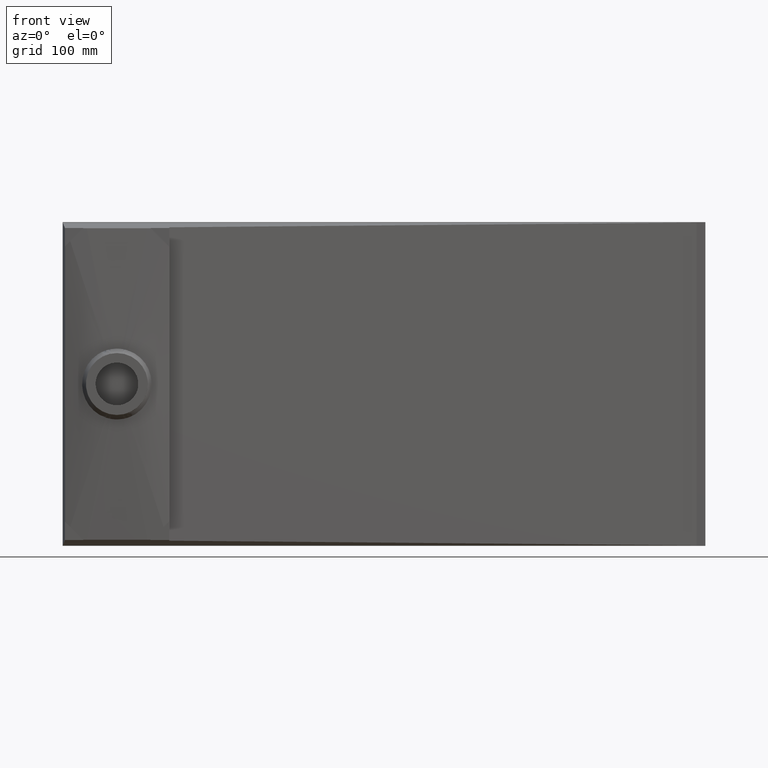
[diagram: clean part render]
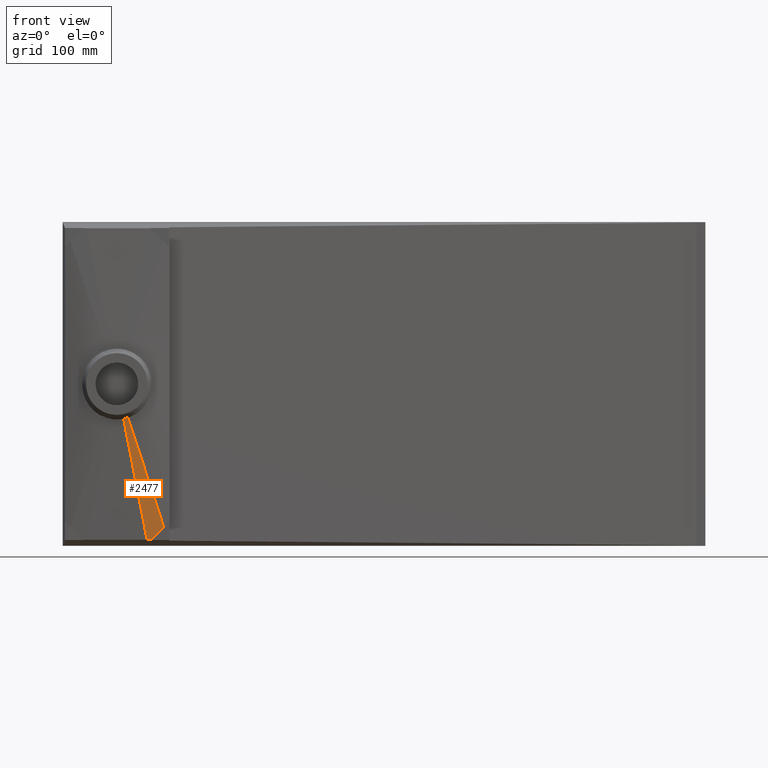
[diagram: same view with one face highlighted and labeled with its STEP entity id]
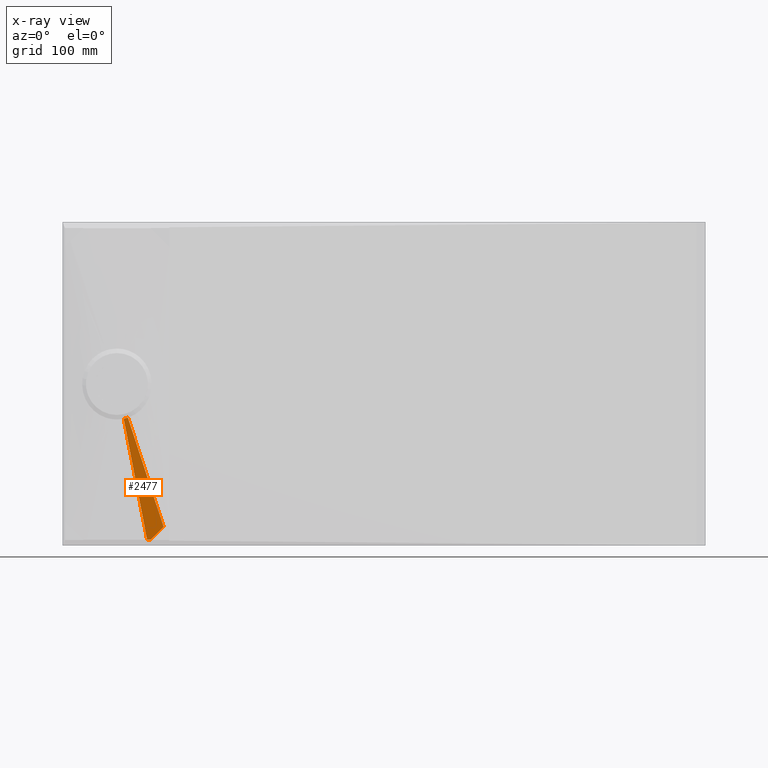
[diagram: x-ray of the same camera — body ghosted, the highlighted face saturated]
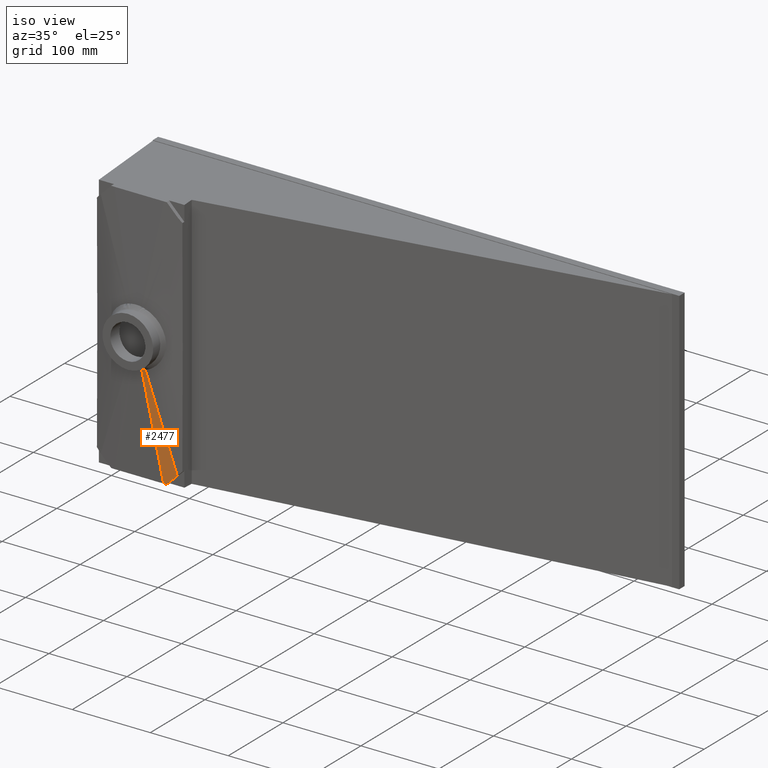
[diagram: same view with one face highlighted and labeled with its STEP entity id]
A machine part, front view. The second image highlights one B-rep face of the part: STEP entity #2477.
The next image is the same camera in x-ray: the body ghosted, the highlighted face saturated — about 0% of this face is hidden behind the body in this view.
A second angle (iso view) of the same face is appended — the face is thin or edge-on in the first view.
In plain terms, the highlighted face is a freeform B-spline surface patch.
Its self-contained STEP definition (entity closure, byte-faithful):
#228 = CARTESIAN_POINT ( 'NONE',  ( 58.54614351858099000, -121.4174629721745000, -195.3431125193549500 ) ) ;
#427 = CARTESIAN_POINT ( 'NONE',  ( 59.53592108445660400, -121.0791283145821500, -204.4689717417503500 ) ) ;
#461 = CARTESIAN_POINT ( 'NONE',  ( 60.96003864894466800, -120.8722246171057700, -209.5553574951167100 ) ) ;
#506 = CARTESIAN_POINT ( 'NONE',  ( 59.25226093279911800, -120.4589704665327600, -223.2772125272419700 ) ) ;
#515 = EDGE_CURVE ( 'NONE', #6365, #8021, #6114, .T. ) ;
#522 = CARTESIAN_POINT ( 'NONE',  ( 62.38415621343273900, -120.6653209196293900, -214.6417432484830400 ) ) ;
#534 = CARTESIAN_POINT ( 'NONE',  ( 60.31089653610995100, -120.2520854132055600, -228.7859897828867900 ) ) ;
#547 = CARTESIAN_POINT ( 'NONE',  ( 63.80493413047494800, -120.4584506155571100, -219.7290578445369000 ) ) ;
#734 = VERTEX_POINT ( 'NONE', #3365 ) ;
#742 = CARTESIAN_POINT ( 'NONE',  ( 71.07462057176361700, -119.0108134788677700, -257.7898609708167300 ) ) ;
#744 = CARTESIAN_POINT ( 'NONE',  ( 58.71628739981817800, -120.6658299117299000, -217.3848253837953200 ) ) ;
#795 = CARTESIAN_POINT ( 'NONE',  ( 76.19523908806746700, -118.1836063095783500, -278.7727904447991700 ) ) ;
#848 = ORIENTED_EDGE ( 'NONE', *, *, #1206, .T. ) ;
#869 = CARTESIAN_POINT ( 'NONE',  ( 54.95389608779177600, -121.4935261185523500, -195.2174705600192500 ) ) ;
#886 = ORIENTED_EDGE ( 'NONE', *, *, #4728, .F. ) ;
#920 = CARTESIAN_POINT ( 'NONE',  ( 55.61845883602679700, -121.4478170917596900, -196.2085659405372300 ) ) ;
#953 = CARTESIAN_POINT ( 'NONE',  ( 71.93181494359970400, -118.1837307090303300, -282.8596823458224200 ) ) ;
#1045 = CARTESIAN_POINT ( 'NONE',  ( 65.22430593101307700, -120.2516012450700900, -224.8167638406261500 ) ) ;
#1067 = EDGE_LOOP ( 'NONE', ( #886, #7523, #5464, #3862, #7598, #848 ) ) ;
#1077 = CARTESIAN_POINT ( 'NONE',  ( 68.06304953208933700, -119.8379025040960400, -234.9921758328046900 ) ) ;
#1109 = CARTESIAN_POINT ( 'NONE',  ( 70.89620548404099100, -119.4242837512126800, -245.1691430267334500 ) ) ;
#1118 = CARTESIAN_POINT ( 'NONE',  ( 62.42816774273161000, -119.8383153065511800, -239.8035442941763600 ) ) ;
#1164 = CARTESIAN_POINT ( 'NONE',  ( 73.72787157557320400, -119.0106955524916800, -255.3465253237477600 ) ) ;
#1206 = EDGE_CURVE ( 'NONE', #8021, #3623, #6637, .T. ) ;
#1223 = CARTESIAN_POINT ( 'NONE',  ( 57.11279345543836400, -121.4318332477066300, -195.8158494930027300 ) ) ;
#1225 = CARTESIAN_POINT ( 'NONE',  ( 56.16662813843875300, -121.2865196872497600, -200.5633767119334700 ) ) ;
#1319 = CARTESIAN_POINT ( 'NONE',  ( 57.36872628181795600, -121.0795406169288500, -205.9116414280476600 ) ) ;
#1327 = CARTESIAN_POINT ( 'NONE',  ( 58.57775011553566500, -121.4171717100984700, -195.3319645154225800 ) ) ;
#1382 = CARTESIAN_POINT ( 'NONE',  ( 81.30884163074283300, -117.3565344284848200, -299.7574338689759100 ) ) ;
#1392 = CARTESIAN_POINT ( 'NONE',  ( 58.03427995295225400, -121.4926691064840400, -193.5252737807296100 ) ) ;
#1434 = CARTESIAN_POINT ( 'NONE',  ( 82.13935298865371200, -116.5295515307960600, -325.0719423630025600 ) ) ;
#1436 = CARTESIAN_POINT ( 'NONE',  ( 58.56772504279945200, -120.8726062206231700, -211.2605949942132800 ) ) ;
#1440 = CARTESIAN_POINT ( 'NONE',  ( 86.42135216909815700, -116.5294918265128400, -320.7423444321598300 ) ) ;
#1496 = CARTESIAN_POINT ( 'NONE',  ( 59.76672380378094800, -120.6656718243174700, -216.6095485603789300 ) ) ;
#1655 = CARTESIAN_POINT ( 'NONE',  ( 76.32259281855994000, -117.3566336736037700, -304.6875357718755000 ) ) ;
#1718 = CARTESIAN_POINT ( 'NONE',  ( 79.39120375863761600, -118.1835191550496500, -275.7012899177763100 ) ) ;
#1732 = CARTESIAN_POINT ( 'NONE',  ( 60.96206288432558300, -120.4587753556243100, -221.9593149324862800 ) ) ;
#1747 = CARTESIAN_POINT ( 'NONE',  ( 85.04800145871654100, -117.3564640050541600, -296.0578745429724600 ) ) ;
#1752 = VERTEX_POINT ( 'NONE', #4477 ) ;
#1764 = CARTESIAN_POINT ( 'NONE',  ( 62.15584003185881600, -120.2519033404750400, -227.3094285253541500 ) ) ;
#1774 = CARTESIAN_POINT ( 'NONE',  ( 90.70379407314827300, -116.5294346877534800, -316.4147394483228500 ) ) ;
#1807 = CARTESIAN_POINT ( 'NONE',  ( 59.65096060941085200, -121.2857314233452000, -198.3996547465012300 ) ) ;
#1841 = CARTESIAN_POINT ( 'NONE',  ( 79.28488801657077500, -116.5295931577367700, -327.9595680487176400 ) ) ;
#1845 = CARTESIAN_POINT ( 'NONE',  ( 78.74294822847747400, -116.6860818408072300, -323.5328601073550200 ) ) ;
#1877 = B_SPLINE_SURFACE_WITH_KNOTS ( 'NONE', 3, 3, ( 
 ( #1841, #6825, #5589, #4933, #4305, #1118, #534, #506, #7283, #6690, #6059, #5409, #2923 ),
 ( #2276, #1655, #953, #7670, #4578, #3321, #6453, #3941, #744, #7694, #6511, #5871, #3964 ),
 ( #1434, #8208, #7854, #7718, #6918, #6397, #6366, #6169, #5696, #5223, #5194, #4443, #4024 ),
 ( #3997, #3024, #2793, #2142, #1986, #1960, #1764, #1732, #1496, #1436, #1319, #1225, #869 ),
 ( #7083, #5907, #4632, #3375, #7720, #7698, #7101, #7057, #6486, #2740, #2713, #2091, #2068 ),
 ( #1440, #1382, #795, #742, #8080, #8057, #8031, #8001, #7969, #7946, #7496, #7467, #7409 ),
 ( #7376, #6869, #6840, #6812, #6787, #6262, #6233, #6209, #6184, #5639, #5543, #5515, #5491 ),
 ( #5004, #4950, #4900, #4209, #3760, #3702, #3674, #3651, #3134, #3040, #2473, #2451, #2367 ),
 ( #1774, #1747, #1718, #1164, #1109, #1077, #1045, #547, #522, #461, #427, #8215, #8038 ),
 ( #8009, #7652, #7575, #7507, #7449, #7418, #7358, #6907, #6796, #6742, #6378, #6355, #6301 ),
 ( #6271, #6141, #5767, #5736, #5677, #5555, #5525, #5167, #5086, #5031, #4986, #4929, #4872 ),
 ( #4547, #4479, #4455, #4401, #4350, #4268, #4234, #3893, #3847, #3822, #3793, #3608, #3299 ),
 ( #3239, #3167, #3048, #2624, #2564, #2539, #2461, #2431, #2379, #2353, #1946, #1807, #1392 ) ),
 .UNSPECIFIED., .F., .F., .F.,
 ( 4, 3, 3, 3, 4 ),
 ( 4, 3, 3, 3, 4 ),
 ( -0.02490228925117890200, 0.2403608545449843500, 0.5056239983411475700, 0.7708871421373109100, 1.036150285933474100 ),
 ( -0.09208230333478750800, 0.4040739755763440000, 0.6521521150319097300, 0.7761911847596926200, 0.9002302544874755100 ),
 .UNSPECIFIED. ) ;
#1946 = CARTESIAN_POINT ( 'NONE',  ( 61.25833494452616900, -121.0788179680140600, -203.2770764722814100 ) ) ;
#1960 = CARTESIAN_POINT ( 'NONE',  ( 64.54339432692529500, -119.8381593101765100, -238.0096557110898900 ) ) ;
#1986 = CARTESIAN_POINT ( 'NONE',  ( 66.92475141259552600, -119.4245086507730500, -248.7112604074996200 ) ) ;
#2068 = CARTESIAN_POINT ( 'NONE',  ( 55.29876052758421400, -121.4934288321400700, -195.0394878077690400 ) ) ;
#2091 = CARTESIAN_POINT ( 'NONE',  ( 56.55626980061774800, -121.2864291914987100, -200.3325257051440100 ) ) ;
#2142 = CARTESIAN_POINT ( 'NONE',  ( 69.30442738937972500, -119.0108946335511300, -259.4132392164590300 ) ) ;
#2276 = CARTESIAN_POINT ( 'NONE',  ( 80.71214734178643400, -116.5295711479937100, -326.5156361972222500 ) ) ;
#2353 = CARTESIAN_POINT ( 'NONE',  ( 62.86314219302363400, -120.8719386924444300, -208.1553381358646400 ) ) ;
#2367 = CARTESIAN_POINT ( 'NONE',  ( 56.32966576685228700, -121.4931378037957600, -194.4886172940098000 ) ) ;
#2379 = CARTESIAN_POINT ( 'NONE',  ( 64.46794944152110000, -120.6650594168748000, -213.0335997994479000 ) ) ;
#2431 = CARTESIAN_POINT ( 'NONE',  ( 66.06966608417704400, -120.4582092759212200, -217.9128721848384800 ) ) ;
#2451 = CARTESIAN_POINT ( 'NONE',  ( 57.72162688323493300, -121.2861599747453300, -199.6238579478543300 ) ) ;
#2461 = CARTESIAN_POINT ( 'NONE',  ( 67.67009509367198900, -120.2513772000409100, -222.7925659163018400 ) ) ;
#2473 = CARTESIAN_POINT ( 'NONE',  ( 59.10353152574303000, -121.0792098189517500, -204.7617748970160100 ) ) ;
#2477 = ADVANCED_FACE ( 'NONE', ( #4164 ), #1877, .T. ) ;
#2539 = CARTESIAN_POINT ( 'NONE',  ( 70.87095311266186600, -119.8377130482802600, -232.5519533792285100 ) ) ;
#2564 = CARTESIAN_POINT ( 'NONE',  ( 74.06668787105158500, -119.4241179086483000, -242.3130171809922600 ) ) ;
#2624 = CARTESIAN_POINT ( 'NONE',  ( 77.26107463520969500, -119.0105487661513700, -252.0745223805455700 ) ) ;
#2713 = CARTESIAN_POINT ( 'NONE',  ( 57.80328133470342800, -121.0794572013969300, -205.6280050612681700 ) ) ;
#2740 = CARTESIAN_POINT ( 'NONE',  ( 59.04725201509492600, -120.8725288333996600, -210.9241932211890000 ) ) ;
#2793 = CARTESIAN_POINT ( 'NONE',  ( 74.06377934294810900, -118.1836665991073100, -280.8171968343778500 ) ) ;
#2923 = CARTESIAN_POINT ( 'NONE',  ( 53.91808042669708800, -121.4938111473783400, -195.7411616589610900 ) ) ;
#3024 = CARTESIAN_POINT ( 'NONE',  ( 78.81579750098194400, -117.3565832164908900, -302.2227859218402800 ) ) ;
#3040 = CARTESIAN_POINT ( 'NONE',  ( 60.48257623612506300, -120.8722998970718700, -209.9004544570048800 ) ) ;
#3048 = CARTESIAN_POINT ( 'NONE',  ( 83.64984816352588800, -118.1834104811575500, -271.5975327796521700 ) ) ;
#3134 = CARTESIAN_POINT ( 'NONE',  ( 61.86162094650709500, -120.6653899751919900, -215.0391340169937800 ) ) ;
#3167 = CARTESIAN_POINT ( 'NONE',  ( 90.03268434406831500, -117.3563756170444500, -291.1224868809574100 ) ) ;
#3239 = CARTESIAN_POINT ( 'NONE',  ( 96.41462115750907500, -116.5293624429616400, -310.6477356620781600 ) ) ;
#3299 = CARTESIAN_POINT ( 'NONE',  ( 57.69688689368758400, -121.4927421235970400, -193.7216985473424400 ) ) ;
#3321 = CARTESIAN_POINT ( 'NONE',  ( 63.13300978510863400, -119.8382748938069400, -239.2074523274621600 ) ) ;
#3365 = CARTESIAN_POINT ( 'NONE',  ( 82.60244305727216800, -116.5630975769416000, -323.5396925664588800 ) ) ;
#3375 = CARTESIAN_POINT ( 'NONE',  ( 70.18968325426472200, -119.0108537402009600, -258.6023079258495700 ) ) ;
#3415 = EDGE_CURVE ( 'NONE', #4988, #734, #4930, .T. ) ;
#3608 = CARTESIAN_POINT ( 'NONE',  ( 59.26815070585144000, -121.2857948547805500, -198.6481725070066500 ) ) ;
#3623 = VERTEX_POINT ( 'NONE', #7970 ) ;
#3651 = CARTESIAN_POINT ( 'NONE',  ( 63.23725981735410800, -120.4585144232450900, -220.1787211255681600 ) ) ;
#3674 = CARTESIAN_POINT ( 'NONE',  ( 64.61146083129789000, -120.2516605267935300, -225.3186917106182800 ) ) ;
#3702 = CARTESIAN_POINT ( 'NONE',  ( 67.35986285918545500, -119.8379527338904200, -235.5986328807185000 ) ) ;
#3760 = CARTESIAN_POINT ( 'NONE',  ( 70.10255290455747000, -119.4243276775949200, -245.8800972834482100 ) ) ;
#3793 = CARTESIAN_POINT ( 'NONE',  ( 60.83012351711857200, -121.0788756399690600, -203.5775634365608100 ) ) ;
#3822 = CARTESIAN_POINT ( 'NONE',  ( 62.38951846444377500, -120.8719916165238600, -208.5077650435884500 ) ) ;
#3847 = CARTESIAN_POINT ( 'NONE',  ( 63.94891341176897700, -120.6651075930786600, -213.4379666506160900 ) ) ;
#3855 = CARTESIAN_POINT ( 'NONE',  ( 58.55668086104496000, -121.4173656970005500, -195.3394016590410700 ) ) ;
#3862 = ORIENTED_EDGE ( 'NONE', *, *, #3935, .T. ) ;
#3879 = CARTESIAN_POINT ( 'NONE',  ( 58.54614351858099000, -121.4174629721745000, -195.3431125193549500 ) ) ;
#3893 = CARTESIAN_POINT ( 'NONE',  ( 65.50521133469143800, -120.4582539698309300, -218.3691416177304600 ) ) ;
#3918 = CARTESIAN_POINT ( 'NONE',  ( 82.60244305727216800, -116.5630975769416000, -323.5396925664588800 ) ) ;
#3935 = EDGE_CURVE ( 'NONE', #1752, #6365, #6343, .T. ) ;
#3941 = CARTESIAN_POINT ( 'NONE',  ( 59.82169867037819700, -120.4589217131375300, -222.8402343005837700 ) ) ;
#3942 = CARTESIAN_POINT ( 'NONE',  ( 81.31594783054481500, -116.6041876268782600, -323.5374097859067300 ) ) ;
#3964 = CARTESIAN_POINT ( 'NONE',  ( 54.26181632601463200, -121.4937379169722200, -195.5697893597352400 ) ) ;
#3997 = CARTESIAN_POINT ( 'NONE',  ( 83.56666495369745500, -116.5295314925205900, -323.6286313403676300 ) ) ;
#4024 = CARTESIAN_POINT ( 'NONE',  ( 54.60903164799933800, -121.4936234049646400, -195.3954533122695000 ) ) ;
#4155 = CARTESIAN_POINT ( 'NONE',  ( 54.10489396846166000, -121.4643460582107100, -196.5074026494639300 ) ) ;
#4164 = FACE_OUTER_BOUND ( 'NONE', #1067, .T. ) ;
#4209 = CARTESIAN_POINT ( 'NONE',  ( 72.84371473251641800, -119.0107343850003200, -256.1619696699282800 ) ) ;
#4234 = CARTESIAN_POINT ( 'NONE',  ( 67.06021571732790700, -120.2514189787232800, -223.3007234199856700 ) ) ;
#4268 = CARTESIAN_POINT ( 'NONE',  ( 70.17022448260087200, -119.8377489965079800, -233.1638870244960300 ) ) ;
#4305 = CARTESIAN_POINT ( 'NONE',  ( 64.53891880409240400, -119.4246459734441000, -250.8223460812860700 ) ) ;
#4350 = CARTESIAN_POINT ( 'NONE',  ( 73.27508804749877000, -119.4241502821572700, -243.0286687219987100 ) ) ;
#4401 = CARTESIAN_POINT ( 'NONE',  ( 76.37859357073077100, -119.0105782559907900, -252.8938778889674900 ) ) ;
#4443 = CARTESIAN_POINT ( 'NONE',  ( 55.77698647625976500, -121.2866101830008300, -200.7942277187229400 ) ) ;
#4446 = CARTESIAN_POINT ( 'NONE',  ( 58.57775011553566500, -121.4171717100984700, -195.3319645154225800 ) ) ;
#4455 = CARTESIAN_POINT ( 'NONE',  ( 82.58560461719477500, -118.1834342036578100, -272.6242962229050600 ) ) ;
#4477 = CARTESIAN_POINT ( 'NONE',  ( 96.03306933583313300, -116.5587839274359100, -310.1090662878978000 ) ) ;
#4479 = CARTESIAN_POINT ( 'NONE',  ( 88.78664010708486400, -117.3563965010508100, -292.3565949359637600 ) ) ;
#4515 = CARTESIAN_POINT ( 'NONE',  ( 58.56721639618265800, -121.4172686095105000, -195.3356856577228500 ) ) ;
#4547 = CARTESIAN_POINT ( 'NONE',  ( 94.98676715831317100, -116.5293810387797000, -312.0891798113057100 ) ) ;
#4578 = CARTESIAN_POINT ( 'NONE',  ( 65.33404384830674900, -119.4246092362485700, -250.1202410846049400 ) ) ;
#4632 = CARTESIAN_POINT ( 'NONE',  ( 75.12960515803932500, -118.1836361745708900, -279.7954419217198800 ) ) ;
#4728 = EDGE_CURVE ( 'NONE', #4988, #3623, #6797, .T. ) ;
#4784 = CARTESIAN_POINT ( 'NONE',  ( 96.03306933583313300, -116.5587839274359100, -310.1090662878978000 ) ) ;
#4794 = CARTESIAN_POINT ( 'NONE',  ( 94.70363861991479800, -116.5591791372914100, -311.4384970038161700 ) ) ;
#4802 = CARTESIAN_POINT ( 'NONE',  ( 93.37420790487509200, -116.5595804338535300, -312.7679277188557900 ) ) ;
#4819 = CARTESIAN_POINT ( 'NONE',  ( 92.04477719175602600, -116.5599940477260400, -314.0973584319749000 ) ) ;
#4829 = CARTESIAN_POINT ( 'NONE',  ( 89.53601367440785500, -116.5607745768527900, -316.6061219493231000 ) ) ;
#4837 = CARTESIAN_POINT ( 'NONE',  ( 87.02725016261233300, -116.5615915091903400, -319.1148854611187700 ) ) ;
#4848 = CARTESIAN_POINT ( 'NONE',  ( 84.51848665659615300, -116.5624417696376200, -321.6236489671349500 ) ) ;
#4860 = CARTESIAN_POINT ( 'NONE',  ( 83.87980545645652300, -116.5626582290055900, -322.2623301672745700 ) ) ;
#4872 = CARTESIAN_POINT ( 'NONE',  ( 57.35524557106324300, -121.4928495768162300, -193.9176272934692500 ) ) ;
#4900 = CARTESIAN_POINT ( 'NONE',  ( 78.32603838843429900, -118.1835477998110900, -276.7257144428884300 ) ) ;
#4929 = CARTESIAN_POINT ( 'NONE',  ( 58.88184386215376500, -121.2858950620954800, -198.8960389228447000 ) ) ;
#4930 = B_SPLINE_CURVE_WITH_KNOTS ( 'NONE', 3,
 ( #6517, #5793, #3942, #3918 ),
 .UNSPECIFIED., .F., .F.,
 ( 4, 4 ),
 ( 0.0000000000000000000, 0.003861459846372733400 ),
 .UNSPECIFIED. ) ;
#4933 = CARTESIAN_POINT ( 'NONE',  ( 66.64788267229836500, -119.0110168046965200, -261.8414902213260100 ) ) ;
#4950 = CARTESIAN_POINT ( 'NONE',  ( 83.80166652435322300, -117.3564871384876800, -297.2912460818117800 ) ) ;
#4984 = CARTESIAN_POINT ( 'NONE',  ( 83.24112425668107600, -116.5628768483631200, -322.9010113670498800 ) ) ;
#4986 = CARTESIAN_POINT ( 'NONE',  ( 60.39886752965870200, -121.0789672617127200, -203.8773401497247200 ) ) ;
#4988 = VERTEX_POINT ( 'NONE', #1845 ) ;
#5004 = CARTESIAN_POINT ( 'NONE',  ( 89.27626074633113300, -116.5294534432642000, -317.8570539974821300 ) ) ;
#5031 = CARTESIAN_POINT ( 'NONE',  ( 61.91321813089103900, -120.8720760670218700, -208.8594495157701400 ) ) ;
#5086 = CARTESIAN_POINT ( 'NONE',  ( 63.42756873212337600, -120.6651848723310300, -213.8415588818155900 ) ) ;
#5167 = CARTESIAN_POINT ( 'NONE',  ( 64.93871508462081000, -120.4583250344766300, -218.8246363701565300 ) ) ;
#5194 = CARTESIAN_POINT ( 'NONE',  ( 56.93417122893249200, -121.0796240324607900, -206.1952777948271500 ) ) ;
#5223 = CARTESIAN_POINT ( 'NONE',  ( 58.08819807050397800, -120.8726836078466700, -211.5969967672375800 ) ) ;
#5409 = CARTESIAN_POINT ( 'NONE',  ( 54.99641465102748600, -121.2867848045412700, -201.2461767745344600 ) ) ;
#5464 = ORIENTED_EDGE ( 'NONE', *, *, #8155, .T. ) ;
#5491 = CARTESIAN_POINT ( 'NONE',  ( 55.98630865020719200, -121.4932346959759100, -194.6733622396021400 ) ) ;
#5515 = CARTESIAN_POINT ( 'NONE',  ( 57.33344301873074000, -121.2862495077094100, -199.8611481791191400 ) ) ;
#5525 = CARTESIAN_POINT ( 'NONE',  ( 66.44851953082904600, -120.2514846698712000, -223.8081196062235600 ) ) ;
#5543 = CARTESIAN_POINT ( 'NONE',  ( 58.67037158838284200, -121.0792920406712500, -205.0515332263853700 ) ) ;
#5555 = CARTESIAN_POINT ( 'NONE',  ( 69.46812842324553100, -119.8378039406603500, -233.7750860783575600 ) ) ;
#5589 = CARTESIAN_POINT ( 'NONE',  ( 70.86581040871026000, -118.1837584672014000, -283.8797785014058900 ) ) ;
#5639 = CARTESIAN_POINT ( 'NONE',  ( 60.00437957768233600, -120.8723759511610200, -210.2426633881048300 ) ) ;
#5677 = CARTESIAN_POINT ( 'NONE',  ( 72.48240144781284800, -119.4241976342857600, -243.7436657929759700 ) ) ;
#5696 = CARTESIAN_POINT ( 'NONE',  ( 59.24222491207546400, -120.6657431832325600, -216.9987157396480200 ) ) ;
#5736 = CARTESIAN_POINT ( 'NONE',  ( 75.49526134637719100, -119.0106194853878300, -253.7126731618945400 ) ) ;
#5767 = CARTESIAN_POINT ( 'NONE',  ( 81.52098114350586400, -118.1834631875919800, -273.6506878997316800 ) ) ;
#5793 = CARTESIAN_POINT ( 'NONE',  ( 80.02944967342425300, -116.6451863401357100, -323.5351320796145800 ) ) ;
#5871 = CARTESIAN_POINT ( 'NONE',  ( 55.38532885662003500, -121.2867194063761600, -201.0215608136368800 ) ) ;
#5907 = CARTESIAN_POINT ( 'NONE',  ( 80.06235167158347100, -117.3565585850396500, -300.9902501173890000 ) ) ;
#6059 = CARTESIAN_POINT ( 'NONE',  ( 56.06377478292741000, -121.0797854296307500, -206.7532858352318800 ) ) ;
#6114 = B_SPLINE_CURVE_WITH_KNOTS ( 'NONE', 3,
 ( #3879, #3855, #4515, #4446 ),
 .UNSPECIFIED., .F., .F.,
 ( 4, 4 ),
 ( 4.257111788135694200E-016, 3.351626166949632800E-005 ),
 .UNSPECIFIED. ) ;
#6141 = CARTESIAN_POINT ( 'NONE',  ( 87.54048969812598100, -117.3564188350551900, -293.5905817712932200 ) ) ;
#6169 = CARTESIAN_POINT ( 'NONE',  ( 60.39253057634685700, -120.4588415102649600, -222.4012222588886800 ) ) ;
#6184 = CARTESIAN_POINT ( 'NONE',  ( 61.33838756698182900, -120.6654598616507900, -215.4337935498242900 ) ) ;
#6209 = CARTESIAN_POINT ( 'NONE',  ( 62.66892508276141200, -120.4585790696158100, -220.6258085656853900 ) ) ;
#6231 = CARTESIAN_POINT ( 'NONE',  ( 54.10489396846166000, -121.4643460582107100, -196.5074026494639300 ) ) ;
#6233 = CARTESIAN_POINT ( 'NONE',  ( 63.99799340866727000, -120.2517206426830400, -225.8181984710142000 ) ) ;
#6238 = CARTESIAN_POINT ( 'NONE',  ( 56.17186341148163800, -121.0662602063160700, -207.0901777301439500 ) ) ;
#6249 = CARTESIAN_POINT ( 'NONE',  ( 58.22708405446711300, -120.6681289721190900, -217.6752390339497100 ) ) ;
#6259 = CARTESIAN_POINT ( 'NONE',  ( 62.33589550206261300, -119.8717980179161800, -238.8456727706921500 ) ) ;
#6262 = CARTESIAN_POINT ( 'NONE',  ( 66.65613006047900100, -119.8380037888175000, -236.2029782816718200 ) ) ;
#6266 = CARTESIAN_POINT ( 'NONE',  ( 64.38808346930378000, -119.4736052049325300, -249.4313190173048200 ) ) ;
#6271 = CARTESIAN_POINT ( 'NONE',  ( 93.55905031203168700, -116.5293981001130800, -313.5307627483827000 ) ) ;
#6279 = CARTESIAN_POINT ( 'NONE',  ( 70.54272166826510200, -118.2789937177692100, -281.1886291397142400 ) ) ;
#6301 = CARTESIAN_POINT ( 'NONE',  ( 57.01371728371285000, -121.4929454201260600, -194.1090676577534000 ) ) ;
#6341 = CARTESIAN_POINT ( 'NONE',  ( 78.74294822847747400, -116.6860818408072300, -323.5328601073550200 ) ) ;
#6343 = B_SPLINE_CURVE_WITH_KNOTS ( 'NONE', 3,
 ( #7962, #7723, #7564, #7498, #7468, #7431, #7345, #7287 ),
 .UNSPECIFIED., .F., .F.,
 ( 4, 2, 2, 4 ),
 ( 0.01754261367367322300, 0.07795821066997350700, 0.1081660091681235800, 0.1383738076662736300 ),
 .UNSPECIFIED. ) ;
#6355 = CARTESIAN_POINT ( 'NONE',  ( 58.49542456067725000, -121.2859830609007200, -199.1397018501797000 ) ) ;
#6365 = VERTEX_POINT ( 'NONE', #228 ) ;
#6366 = CARTESIAN_POINT ( 'NONE',  ( 61.54124382299929200, -120.2519649723731900, -227.8040661675927900 ) ) ;
#6378 = CARTESIAN_POINT ( 'NONE',  ( 59.96739430705765300, -121.0790477881474300, -204.1731559457375300 ) ) ;
#6386 = CARTESIAN_POINT ( 'NONE',  ( 74.64306691116857500, -117.4825426996691700, -302.3606999422060000 ) ) ;
#6397 = CARTESIAN_POINT ( 'NONE',  ( 63.83867031630415300, -119.8382118965896300, -238.6097539850010500 ) ) ;
#6453 = CARTESIAN_POINT ( 'NONE',  ( 60.92546904195501200, -120.2520394400273500, -228.2959736428765600 ) ) ;
#6486 = CARTESIAN_POINT ( 'NONE',  ( 60.29122269548642500, -120.6656004654023900, -216.2203813811098300 ) ) ;
#6511 = CARTESIAN_POINT ( 'NONE',  ( 56.49781632798515600, -121.0797249909600500, -206.4755459084718200 ) ) ;
#6517 = CARTESIAN_POINT ( 'NONE',  ( 78.74294822847747400, -116.6860818408072300, -323.5328601073550200 ) ) ;
#6585 = B_SPLINE_CURVE_WITH_KNOTS ( 'NONE', 3,
 ( #7015, #4984, #4860, #4848, #4837, #4829, #4819, #4802, #4794, #4784 ),
 .UNSPECIFIED., .F., .F.,
 ( 4, 3, 3, 4 ),
 ( 0.09764531036900306300, 0.1003550052925742500, 0.1109987877233327700, 0.1166390846938994300 ),
 .UNSPECIFIED. ) ;
#6637 = B_SPLINE_CURVE_WITH_KNOTS ( 'NONE', 3,
 ( #7923, #1223, #920, #4155 ),
 .UNSPECIFIED., .F., .F.,
 ( 4, 4 ),
 ( 1.387778780781445500E-017, 0.004627766270629107000 ),
 .UNSPECIFIED. ) ;
#6690 = CARTESIAN_POINT ( 'NONE',  ( 57.12787765594133300, -120.8728336743196400, -212.2610178933958600 ) ) ;
#6742 = CARTESIAN_POINT ( 'NONE',  ( 61.43662838991785700, -120.8721503420638200, -209.2074035054434400 ) ) ;
#6787 = CARTESIAN_POINT ( 'NONE',  ( 69.30843210908457800, -119.4243723705537000, -246.5892467586368500 ) ) ;
#6796 = CARTESIAN_POINT ( 'NONE',  ( 62.90586247277806100, -120.6652528959802000, -214.2416510651493100 ) ) ;
#6797 = B_SPLINE_CURVE_WITH_KNOTS ( 'NONE', 3,
 ( #6341, #6386, #6279, #6266, #6259, #6249, #6238, #6231 ),
 .UNSPECIFIED., .F., .F.,
 ( 4, 2, 2, 4 ),
 ( 0.0000000000000000000, 0.06474051035364132600, 0.09711076553046199500, 0.1294810207072826500 ),
 .UNSPECIFIED. ) ;
#6812 = CARTESIAN_POINT ( 'NONE',  ( 71.95916765214001000, -119.0107739319340400, -256.9759153203725100 ) ) ;
#6825 = CARTESIAN_POINT ( 'NONE',  ( 75.07596630785752700, -117.3566582383626000, -305.9195549258851700 ) ) ;
#6840 = CARTESIAN_POINT ( 'NONE',  ( 77.26063873825089000, -118.1835770546947200, -277.7492524438437700 ) ) ;
#6869 = CARTESIAN_POINT ( 'NONE',  ( 82.55525407754802800, -117.3565107834862400, -298.5243399753938400 ) ) ;
#6907 = CARTESIAN_POINT ( 'NONE',  ( 64.37182460754787900, -120.4583878250168700, -219.2768471073467300 ) ) ;
#6918 = CARTESIAN_POINT ( 'NONE',  ( 66.12978052281363300, -119.4245547785301100, -249.4167798870848300 ) ) ;
#7015 = CARTESIAN_POINT ( 'NONE',  ( 82.60244305727216800, -116.5630975769416000, -323.5396925664588800 ) ) ;
#7057 = CARTESIAN_POINT ( 'NONE',  ( 61.53159519230430900, -120.4587092009836600, -221.5174076060838800 ) ) ;
#7083 = CARTESIAN_POINT ( 'NONE',  ( 84.99397691874119700, -116.5295114542451100, -322.1853203177326500 ) ) ;
#7101 = CARTESIAN_POINT ( 'NONE',  ( 62.77043624071834700, -120.2518417085769000, -226.8147908831155100 ) ) ;
#7283 = CARTESIAN_POINT ( 'NONE',  ( 58.19198052895526300, -120.6658819190085400, -217.7687499515598400 ) ) ;
#7287 = CARTESIAN_POINT ( 'NONE',  ( 58.54614351858099000, -121.4174629721745000, -195.3431125193549500 ) ) ;
#7345 = CARTESIAN_POINT ( 'NONE',  ( 61.72095271025745700, -121.0122864003398000, -204.8901361360304300 ) ) ;
#7358 = CARTESIAN_POINT ( 'NONE',  ( 65.83641273092106900, -120.2515429574706500, -224.3124417234248500 ) ) ;
#7376 = CARTESIAN_POINT ( 'NONE',  ( 87.84880645771464500, -116.5294726348885200, -319.2996992148209800 ) ) ;
#7409 = CARTESIAN_POINT ( 'NONE',  ( 55.64295153356209800, -121.4933315881560800, -194.8581071851944800 ) ) ;
#7418 = CARTESIAN_POINT ( 'NONE',  ( 68.76558897766743400, -119.8378532223782000, -234.3836309555811100 ) ) ;
#7431 = CARTESIAN_POINT ( 'NONE',  ( 64.86610756999877500, -120.6069088378169500, -214.4469924282051600 ) ) ;
#7449 = CARTESIAN_POINT ( 'NONE',  ( 71.68930346592691200, -119.4242406927492200, -244.4564044098547100 ) ) ;
#7467 = CARTESIAN_POINT ( 'NONE',  ( 56.94525915422655500, -121.2863390406735000, -200.0984384103839800 ) ) ;
#7468 = CARTESIAN_POINT ( 'NONE',  ( 71.13763679422567100, -119.7966136294946700, -233.5669302022073700 ) ) ;
#7496 = CARTESIAN_POINT ( 'NONE',  ( 58.23721165102265500, -121.0793742623907600, -205.3412915557547400 ) ) ;
#7498 = CARTESIAN_POINT ( 'NONE',  ( 74.26206179523639200, -119.3916162754652700, -243.1306193457578500 ) ) ;
#7507 = CARTESIAN_POINT ( 'NONE',  ( 74.61156646097519700, -119.0106575189397500, -254.5295992428211500 ) ) ;
#7523 = ORIENTED_EDGE ( 'NONE', *, *, #3415, .T. ) ;
#7564 = CARTESIAN_POINT ( 'NONE',  ( 83.61716882369627500, -118.1770135226349900, -271.8276193930155400 ) ) ;
#7575 = CARTESIAN_POINT ( 'NONE',  ( 80.45609245107174000, -118.1834911713208200, -274.6759889087539900 ) ) ;
#7598 = ORIENTED_EDGE ( 'NONE', *, *, #515, .T. ) ;
#7652 = CARTESIAN_POINT ( 'NONE',  ( 86.29424557842125400, -117.3564414200546800, -294.8242281571328400 ) ) ;
#7670 = CARTESIAN_POINT ( 'NONE',  ( 67.53330088007108100, -119.0109830605091500, -261.0333881716774700 ) ) ;
#7694 = CARTESIAN_POINT ( 'NONE',  ( 57.60705186390166700, -120.8727774513449700, -211.9301856461335700 ) ) ;
#7698 = CARTESIAN_POINT ( 'NONE',  ( 65.24811833754643000, -119.8381067237634000, -237.4095574371787300 ) ) ;
#7718 = CARTESIAN_POINT ( 'NONE',  ( 68.41917152449472900, -119.0109355269013100, -260.2241705070684900 ) ) ;
#7720 = CARTESIAN_POINT ( 'NONE',  ( 67.71972230237742000, -119.4244625230159900, -248.0057409279144500 ) ) ;
#7723 = CARTESIAN_POINT ( 'NONE',  ( 89.82993974244202200, -117.3677717291014200, -290.9667777676427200 ) ) ;
#7854 = CARTESIAN_POINT ( 'NONE',  ( 72.99795352785690700, -118.1836970236437300, -281.8389517470357600 ) ) ;
#7923 = CARTESIAN_POINT ( 'NONE',  ( 58.57775011553566500, -121.4171717100984700, -195.3319645154225800 ) ) ;
#7946 = CARTESIAN_POINT ( 'NONE',  ( 59.52618291923960900, -120.8724520052501700, -210.5848723192047500 ) ) ;
#7962 = CARTESIAN_POINT ( 'NONE',  ( 96.03306933583313300, -116.5587839274359100, -310.1090662878978000 ) ) ;
#7969 = CARTESIAN_POINT ( 'NONE',  ( 60.81515418745657100, -120.6655297481095800, -215.8284530826547900 ) ) ;
#7970 = CARTESIAN_POINT ( 'NONE',  ( 54.10489396846166000, -121.4643460582107100, -196.5074026494639300 ) ) ;
#8001 = CARTESIAN_POINT ( 'NONE',  ( 62.10059034816870100, -120.4586437159865300, -221.0728960058026200 ) ) ;
#8009 = CARTESIAN_POINT ( 'NONE',  ( 92.13142219258998000, -116.5294163939332900, -314.9727510983527700 ) ) ;
#8021 = VERTEX_POINT ( 'NONE', #1327 ) ;
#8031 = CARTESIAN_POINT ( 'NONE',  ( 63.38452598603665000, -120.2517807585725400, -226.3177052314101200 ) ) ;
#8038 = CARTESIAN_POINT ( 'NONE',  ( 56.67218899636245100, -121.4930412634359100, -194.3005080220375500 ) ) ;
#8057 = CARTESIAN_POINT ( 'NONE',  ( 65.95239726177256000, -119.8380548437445700, -236.8073236826251100 ) ) ;
#8080 = CARTESIAN_POINT ( 'NONE',  ( 68.51431131361168500, -119.4244170635124800, -247.2983962338255100 ) ) ;
#8155 = EDGE_CURVE ( 'NONE', #734, #1752, #6585, .T. ) ;
#8208 = CARTESIAN_POINT ( 'NONE',  ( 77.56924333038041700, -117.3566078479421300, -303.4553217262915200 ) ) ;
#8215 = CARTESIAN_POINT ( 'NONE',  ( 58.10900525920072800, -121.2860710597059600, -199.3833647775147100 ) ) ;